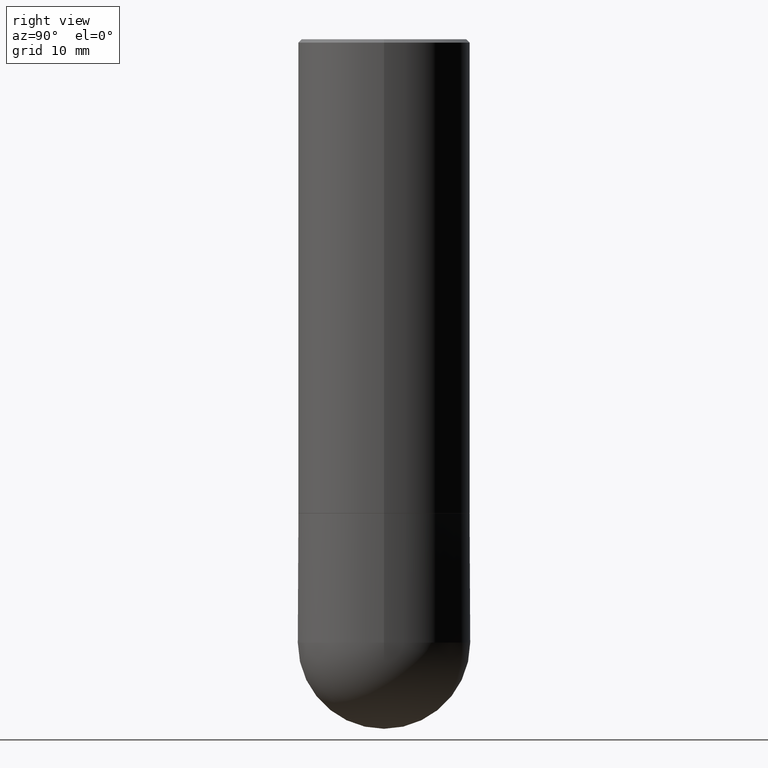
[diagram: clean part render]
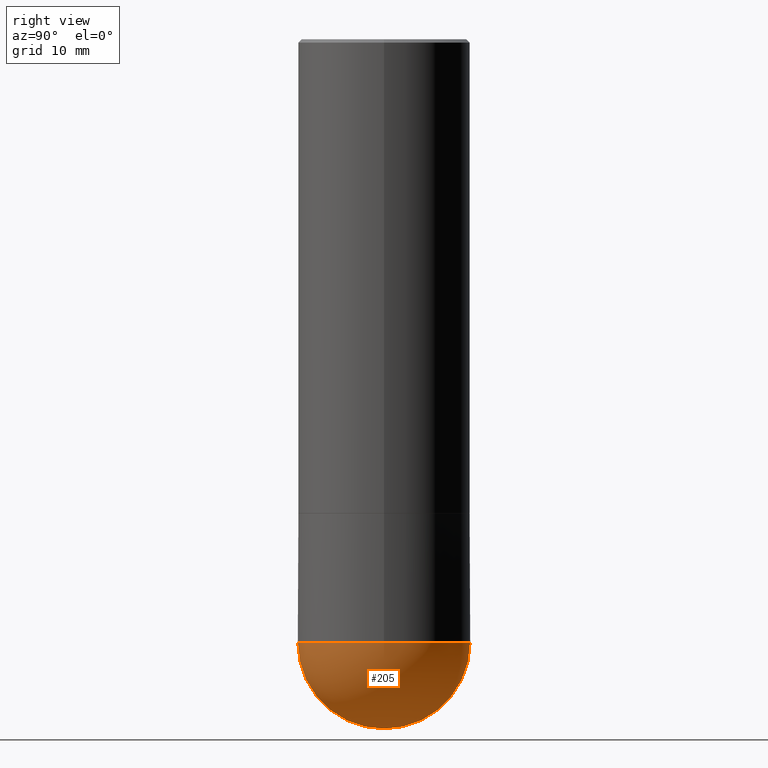
[diagram: same view with one face highlighted and labeled with its STEP entity id]
A machine part, right view. The second image highlights one B-rep face of the part: STEP entity #205.
In plain terms, the highlighted spherical surface has radius 12.7 mm.
Its self-contained STEP definition (entity closure, byte-faithful):
#4 = AXIS2_PLACEMENT_3D ( 'NONE', #364, #173, #239 ) ;
#6 = CARTESIAN_POINT ( 'NONE',  ( -3.552713678800417310E-15, -0.5000000000000125455, -3.499999999999998668 ) ) ;
#10 = CARTESIAN_POINT ( 'NONE',  ( 0.5000000000000000000, -1.440236052272796769E-14, -3.500000000000000444 ) ) ;
#12 = CARTESIAN_POINT ( 'NONE',  ( 8.228021043734090721E-29, -1.269436705409105806E-14, -3.500000000000000000 ) ) ;
#17 = CIRCLE ( 'NONE', #284, 0.5000000000000002220 ) ;
#26 = VERTEX_POINT ( 'NONE', #6 ) ;
#32 = VERTEX_POINT ( 'NONE', #91 ) ;
#39 = AXIS2_PLACEMENT_3D ( 'NONE', #382, #68, #198 ) ;
#68 = DIRECTION ( 'NONE',  ( -2.445468806185136597E-29, 3.491481338843145583E-15, 1.000000000000000000 ) ) ;
#79 = CARTESIAN_POINT ( 'NONE',  ( 8.559140821647978089E-29, -1.222018468595101092E-14, -3.500000000000000444 ) ) ;
#83 = EDGE_LOOP ( 'NONE', ( #120, #375, #128, #326 ) ) ;
#91 = CARTESIAN_POINT ( 'NONE',  ( 9.472134604056145415E-29, -1.440949155353394884E-14, -4.000000000000000000 ) ) ;
#99 = FACE_OUTER_BOUND ( 'NONE', #83, .T. ) ;
#101 = DIRECTION ( 'NONE',  ( -7.105427357601001859E-15, -1.000000000000000000, 0.000000000000000000 ) ) ;
#103 = DIRECTION ( 'NONE',  ( 6.982962677686266711E-15, 1.000000000000000000, 0.000000000000000000 ) ) ;
#108 = EDGE_CURVE ( 'NONE', #248, #113, #359, .T. ) ;
#113 = VERTEX_POINT ( 'NONE', #265 ) ;
#120 = ORIENTED_EDGE ( 'NONE', *, *, #217, .F. ) ;
#128 = ORIENTED_EDGE ( 'NONE', *, *, #108, .F. ) ;
#168 = CIRCLE ( 'NONE', #204, 0.5000000000000002220 ) ;
#173 = DIRECTION ( 'NONE',  ( -1.000000000000000000, 6.982962677686265922E-15, -4.883557194083113462E-29 ) ) ;
#175 = DIRECTION ( 'NONE',  ( -1.000000000000000000, 7.105427357601001070E-15, -4.926315508542082329E-29 ) ) ;
#198 = DIRECTION ( 'NONE',  ( 1.000000000000000000, -6.982962677686266711E-15, 0.000000000000000000 ) ) ;
#201 = EDGE_CURVE ( 'NONE', #32, #113, #17, .T. ) ;
#204 = AXIS2_PLACEMENT_3D ( 'NONE', #12, #175, #101 ) ;
#205 = ADVANCED_FACE ( 'NONE', ( #99 ), #297, .T. ) ;
#217 = EDGE_CURVE ( 'NONE', #32, #26, #168, .T. ) ;
#239 = DIRECTION ( 'NONE',  ( 6.982962677686265922E-15, 1.000000000000000000, -3.278217592397114284E-15 ) ) ;
#248 = VERTEX_POINT ( 'NONE', #10 ) ;
#265 = CARTESIAN_POINT ( 'NONE',  ( 3.491481338843217763E-15, 0.4999999999999876765, -3.500000000000002220 ) ) ;
#273 = AXIS2_PLACEMENT_3D ( 'NONE', #79, #307, #311 ) ;
#284 = AXIS2_PLACEMENT_3D ( 'NONE', #398, #296, #103 ) ;
#292 = CIRCLE ( 'NONE', #273, 0.5000000000000000000 ) ;
#296 = DIRECTION ( 'NONE',  ( 1.000000000000000000, -6.982962677686265922E-15, 4.883557194083112340E-29 ) ) ;
#297 = SPHERICAL_SURFACE ( 'NONE', #4, 0.5000000000000002220 ) ;
#307 = DIRECTION ( 'NONE',  ( -2.445468806185136597E-29, 3.491481338843145583E-15, 1.000000000000000000 ) ) ;
#311 = DIRECTION ( 'NONE',  ( 1.000000000000000000, -6.982962677686266711E-15, 0.000000000000000000 ) ) ;
#326 = ORIENTED_EDGE ( 'NONE', *, *, #380, .F. ) ;
#359 = CIRCLE ( 'NONE', #39, 0.5000000000000000000 ) ;
#364 = CARTESIAN_POINT ( 'NONE',  ( 8.228021043734090721E-29, -1.269436705409105806E-14, -3.500000000000000000 ) ) ;
#375 = ORIENTED_EDGE ( 'NONE', *, *, #201, .T. ) ;
#380 = EDGE_CURVE ( 'NONE', #26, #248, #292, .T. ) ;
#382 = CARTESIAN_POINT ( 'NONE',  ( 8.559140821647978089E-29, -1.222018468595101092E-14, -3.500000000000000444 ) ) ;
#398 = CARTESIAN_POINT ( 'NONE',  ( 8.228021043734090721E-29, -1.269436705409105806E-14, -3.500000000000000000 ) ) ;